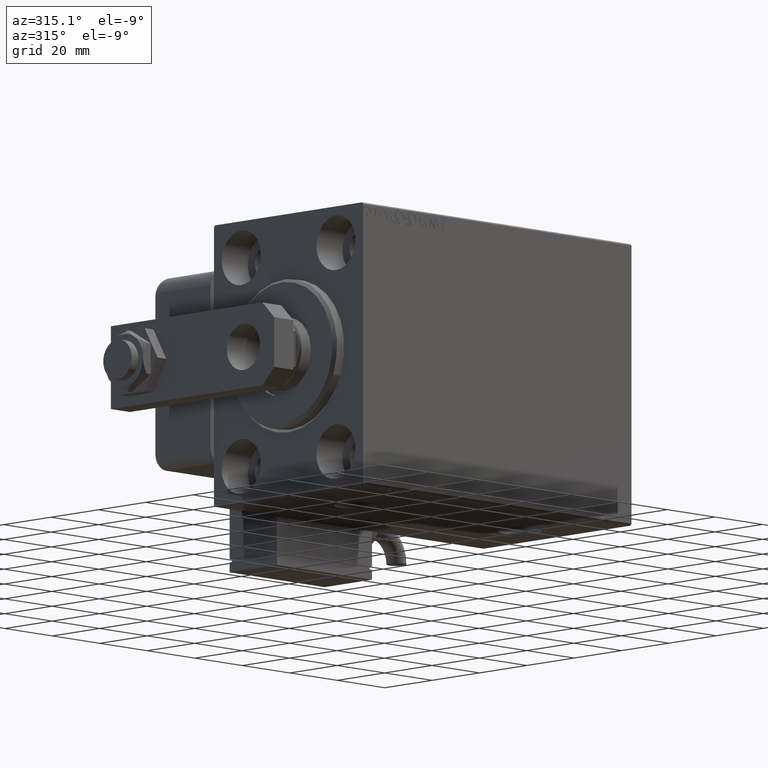
[diagram: clean part render]
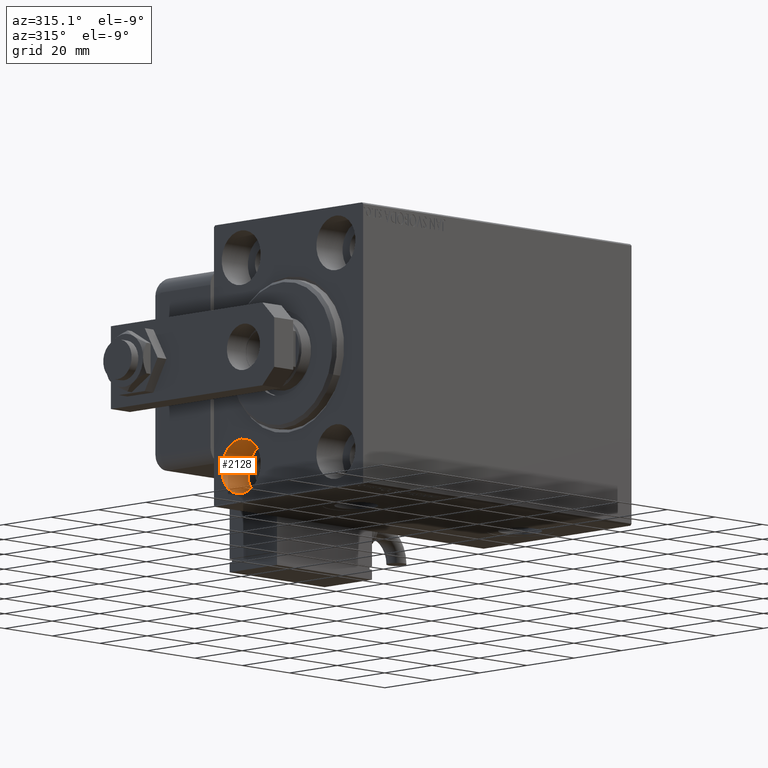
[diagram: same view with one face highlighted and labeled with its STEP entity id]
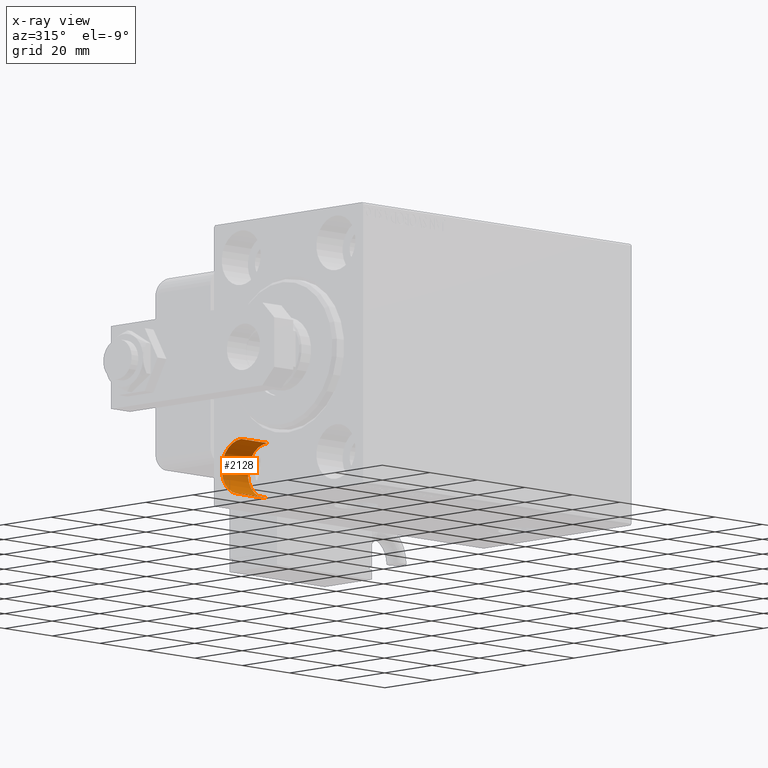
[diagram: x-ray of the same camera — body ghosted, the highlighted face saturated]
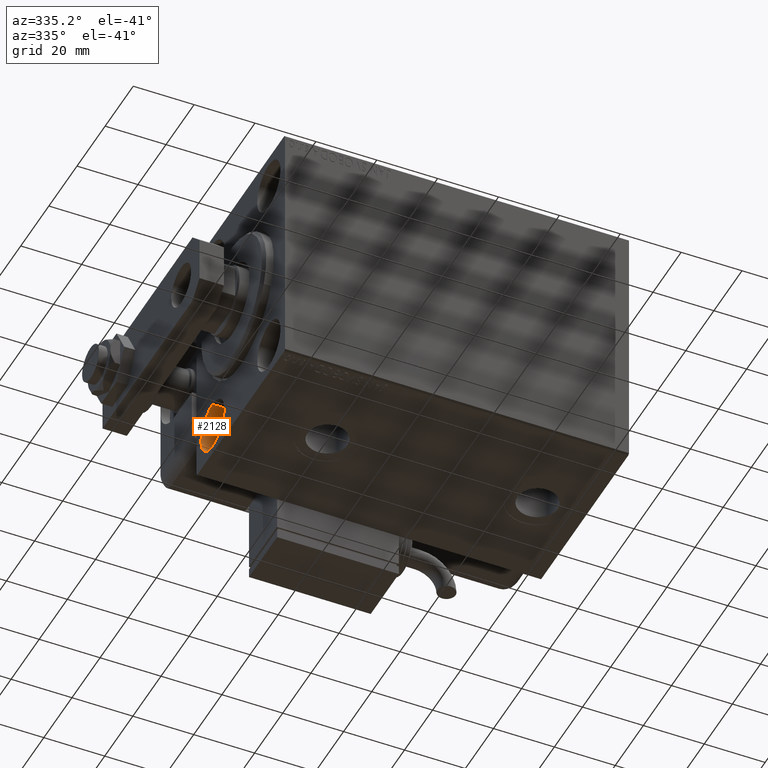
[diagram: same view with one face highlighted and labeled with its STEP entity id]
A machine part, auxiliary view. The second image highlights one B-rep face of the part: STEP entity #2128.
The next image is the same camera in x-ray: the body ghosted, the highlighted face saturated — about 0% of this face is hidden behind the body in this view.
A second angle (auxiliary view) of the same face is appended — the face is thin or edge-on in the first view.
In plain terms, the highlighted cylindrical surface (edge-blend (fillet) strip) has radius 8.25 mm, axis along (-1, -0, -0).
Its self-contained STEP definition (entity closure, byte-faithful):
#1644 = ORIENTED_EDGE ( 'NONE', *, *, #17775, .T. ) ;
#2128 = ADVANCED_FACE ( 'NONE', ( #35083 ), #2747, .F. ) ;
#2747 = CYLINDRICAL_SURFACE ( 'NONE', #51532, 8.250000000000000000 ) ;
#4021 = LINE ( 'NONE', #26690, #51680 ) ;
#5514 = EDGE_CURVE ( 'NONE', #38033, #42879, #37872, .T. ) ;
#7293 = DIRECTION ( 'NONE',  ( -1.000000000000000000, -0.000000000000000000, -0.000000000000000000 ) ) ;
#8844 = DIRECTION ( 'NONE',  ( -1.000000000000000000, 0.000000000000000000, 0.000000000000000000 ) ) ;
#12741 = CIRCLE ( 'NONE', #52292, 8.250000000000000000 ) ;
#14711 = CARTESIAN_POINT ( 'NONE',  ( 0.000000000000000000, 19.99999999999999645, -39.74999999999999289 ) ) ;
#15618 = LINE ( 'NONE', #57609, #23737 ) ;
#17505 = EDGE_CURVE ( 'NONE', #27329, #42879, #15618, .T. ) ;
#17775 = EDGE_CURVE ( 'NONE', #49031, #38033, #4021, .T. ) ;
#18211 = DIRECTION ( 'NONE',  ( 0.000000000000000000, 0.000000000000000000, 1.000000000000000000 ) ) ;
#20585 = DIRECTION ( 'NONE',  ( 0.000000000000000000, 0.000000000000000000, 1.000000000000000000 ) ) ;
#21412 = ORIENTED_EDGE ( 'NONE', *, *, #5514, .T. ) ;
#22540 = EDGE_LOOP ( 'NONE', ( #41381, #57811, #1644, #21412 ) ) ;
#23043 = CARTESIAN_POINT ( 'NONE',  ( 0.000000000000000000, 19.99999999999999645, -31.49999999999999289 ) ) ;
#23737 = VECTOR ( 'NONE', #34647, 1000.000000000000000 ) ;
#24096 = CARTESIAN_POINT ( 'NONE',  ( 11.00000000000000000, 19.99999999999999645, -23.24999999999999289 ) ) ;
#26690 = CARTESIAN_POINT ( 'NONE',  ( 11.00000000000000000, 19.99999999999999645, -23.24999999999999289 ) ) ;
#27329 = VERTEX_POINT ( 'NONE', #33334 ) ;
#33215 = EDGE_CURVE ( 'NONE', #49031, #27329, #12741, .T. ) ;
#33334 = CARTESIAN_POINT ( 'NONE',  ( 11.00000000000000000, 19.99999999999999645, -39.74999999999999289 ) ) ;
#34188 = CARTESIAN_POINT ( 'NONE',  ( 11.00000000000000000, 19.99999999999999645, -31.49999999999999289 ) ) ;
#34211 = CARTESIAN_POINT ( 'NONE',  ( 11.00000000000000000, 19.99999999999999645, -31.49999999999999289 ) ) ;
#34647 = DIRECTION ( 'NONE',  ( -1.000000000000000000, -0.000000000000000000, -0.000000000000000000 ) ) ;
#35083 = FACE_OUTER_BOUND ( 'NONE', #22540, .T. ) ;
#35404 = DIRECTION ( 'NONE',  ( -1.000000000000000000, 0.000000000000000000, 0.000000000000000000 ) ) ;
#35752 = DIRECTION ( 'NONE',  ( -1.000000000000000000, -0.000000000000000000, -0.000000000000000000 ) ) ;
#37872 = CIRCLE ( 'NONE', #46604, 8.250000000000000000 ) ;
#38033 = VERTEX_POINT ( 'NONE', #58476 ) ;
#39646 = DIRECTION ( 'NONE',  ( 0.000000000000000000, 0.000000000000000000, 1.000000000000000000 ) ) ;
#41381 = ORIENTED_EDGE ( 'NONE', *, *, #17505, .F. ) ;
#42879 = VERTEX_POINT ( 'NONE', #14711 ) ;
#46604 = AXIS2_PLACEMENT_3D ( 'NONE', #23043, #8844, #18211 ) ;
#49031 = VERTEX_POINT ( 'NONE', #24096 ) ;
#51532 = AXIS2_PLACEMENT_3D ( 'NONE', #34188, #7293, #20585 ) ;
#51680 = VECTOR ( 'NONE', #35752, 1000.000000000000000 ) ;
#52292 = AXIS2_PLACEMENT_3D ( 'NONE', #34211, #35404, #39646 ) ;
#57609 = CARTESIAN_POINT ( 'NONE',  ( 11.00000000000000000, 19.99999999999999645, -39.74999999999999289 ) ) ;
#57811 = ORIENTED_EDGE ( 'NONE', *, *, #33215, .F. ) ;
#58476 = CARTESIAN_POINT ( 'NONE',  ( 0.000000000000000000, 19.99999999999999645, -23.24999999999999289 ) ) ;